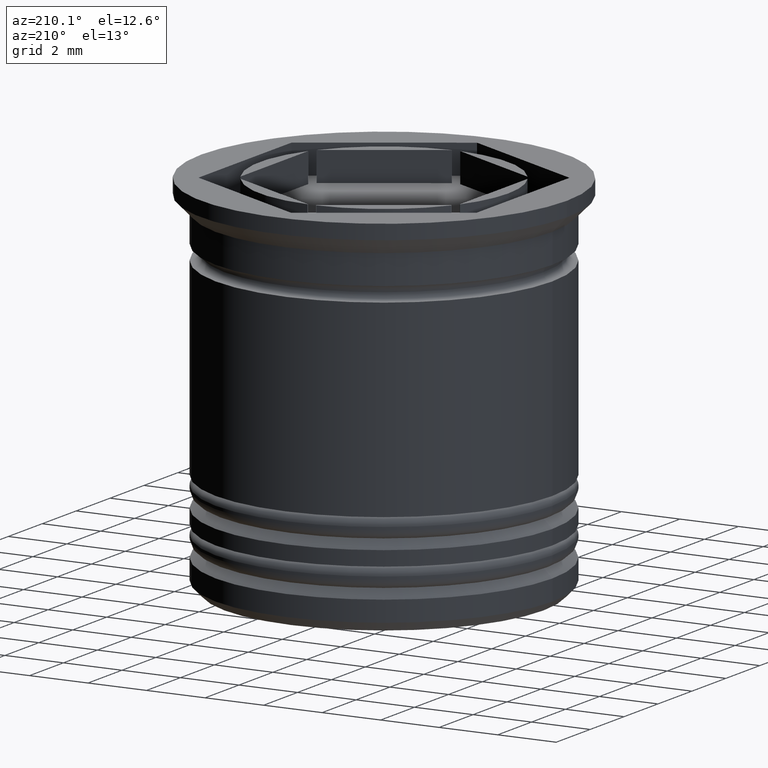
[diagram: clean part render]
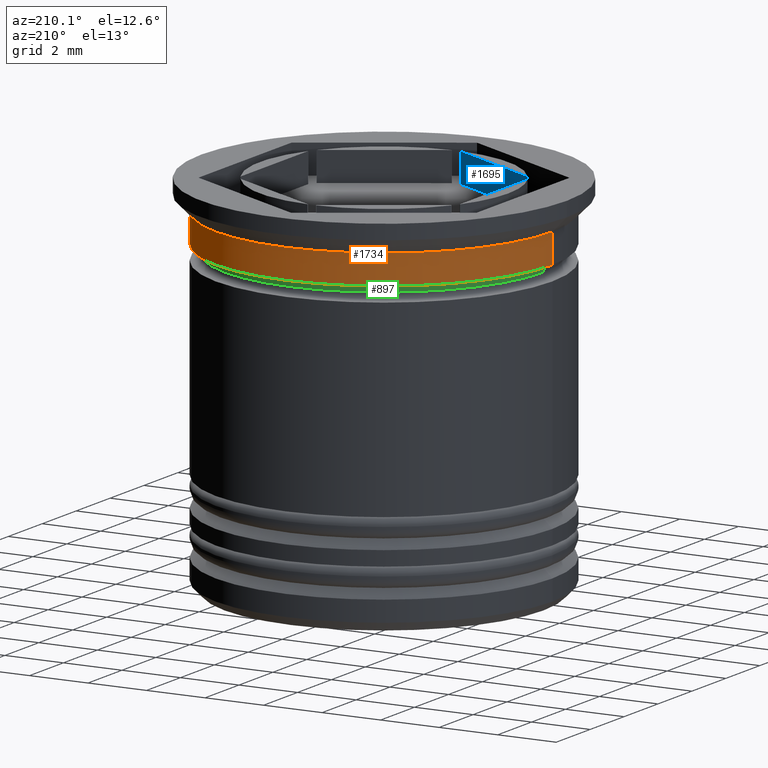
[diagram: same view with three faces highlighted in distinct colors, each labeled with its STEP entity id]
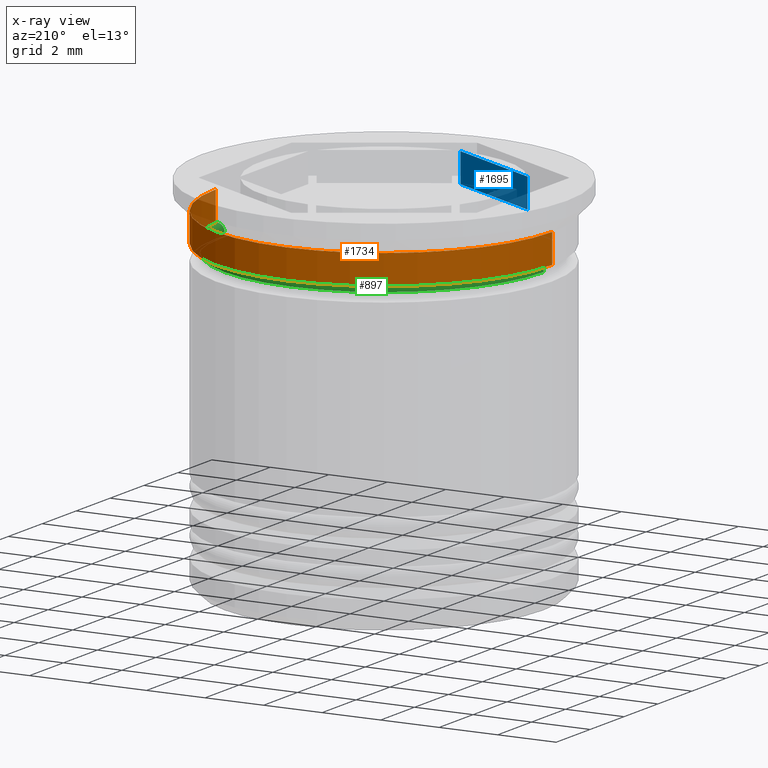
[diagram: x-ray of the same camera — body ghosted, the three highlighted faces saturated]
A machine part, auxiliary view with three faces highlighted in distinct colors.
The next image is the same camera in x-ray (body ghosted, the three faces saturated) — at least one of them is partly hidden behind the body in this view.
Their STEP definitions:

[orange] entity #1734 — the highlighted cylindrical surface (partial cylindrical patch) has radius 5.75 mm, axis along (-0, -0, 1).
#155 = ORIENTED_EDGE ( 'NONE', *, *, #1842, .F. ) ;
#162 = DIRECTION ( 'NONE',  ( 1.000000000000000000, 0.000000000000000000, 0.000000000000000000 ) ) ;
#204 = DIRECTION ( 'NONE',  ( 1.000000000000000000, 0.000000000000000000, 0.000000000000000000 ) ) ;
#206 = ORIENTED_EDGE ( 'NONE', *, *, #493, .T. ) ;
#259 = CARTESIAN_POINT ( 'NONE',  ( 0.000000000000000000, 0.000000000000000000, 0.000000000000000000 ) ) ;
#314 = DIRECTION ( 'NONE',  ( -0.000000000000000000, -0.000000000000000000, 1.000000000000000000 ) ) ;
#320 = VERTEX_POINT ( 'NONE', #1635 ) ;
#382 = ORIENTED_EDGE ( 'NONE', *, *, #1941, .F. ) ;
#453 = DIRECTION ( 'NONE',  ( 1.000000000000000000, 0.000000000000000000, 0.000000000000000000 ) ) ;
#493 = EDGE_CURVE ( 'NONE', #1436, #320, #573, .T. ) ;
#559 = CIRCLE ( 'NONE', #1985, 5.749999999999999112 ) ;
#573 = LINE ( 'NONE', #1451, #786 ) ;
#772 = CARTESIAN_POINT ( 'NONE',  ( 5.749999999999998224, 0.000000000000000000, 0.000000000000000000 ) ) ;
#786 = VECTOR ( 'NONE', #1475, 1000.000000000000000 ) ;
#796 = CARTESIAN_POINT ( 'NONE',  ( -5.749999999999999112, 7.041719095097280880E-16, -2.000000000000000444 ) ) ;
#812 = DIRECTION ( 'NONE',  ( -0.000000000000000000, -0.000000000000000000, 1.000000000000000000 ) ) ;
#830 = ORIENTED_EDGE ( 'NONE', *, *, #1855, .T. ) ;
#846 = CIRCLE ( 'NONE', #1570, 5.749999999999998224 ) ;
#869 = VERTEX_POINT ( 'NONE', #1622 ) ;
#903 = CARTESIAN_POINT ( 'NONE',  ( 0.000000000000000000, 0.000000000000000000, -0.9999999999999995559 ) ) ;
#936 = CARTESIAN_POINT ( 'NONE',  ( 5.749999999999998224, 0.000000000000000000, -0.9999999999999995559 ) ) ;
#1005 = VERTEX_POINT ( 'NONE', #936 ) ;
#1107 = VECTOR ( 'NONE', #812, 1000.000000000000000 ) ;
#1192 = DIRECTION ( 'NONE',  ( -0.000000000000000000, -0.000000000000000000, 1.000000000000000000 ) ) ;
#1206 = AXIS2_PLACEMENT_3D ( 'NONE', #259, #1192, #162 ) ;
#1383 = CYLINDRICAL_SURFACE ( 'NONE', #1206, 5.749999999999998224 ) ;
#1401 = CARTESIAN_POINT ( 'NONE',  ( 0.000000000000000000, 0.000000000000000000, -2.000000000000000444 ) ) ;
#1436 = VERTEX_POINT ( 'NONE', #796 ) ;
#1451 = CARTESIAN_POINT ( 'NONE',  ( -5.749999999999998224, 7.041719095097278907E-16, 0.000000000000000000 ) ) ;
#1475 = DIRECTION ( 'NONE',  ( -0.000000000000000000, -0.000000000000000000, 1.000000000000000000 ) ) ;
#1530 = FACE_OUTER_BOUND ( 'NONE', #1633, .T. ) ;
#1570 = AXIS2_PLACEMENT_3D ( 'NONE', #903, #1843, #453 ) ;
#1622 = CARTESIAN_POINT ( 'NONE',  ( 5.749999999999999112, 0.000000000000000000, -2.000000000000000444 ) ) ;
#1633 = EDGE_LOOP ( 'NONE', ( #830, #206, #155, #382 ) ) ;
#1635 = CARTESIAN_POINT ( 'NONE',  ( -5.749999999999998224, 7.041719095097278907E-16, -0.9999999999999995559 ) ) ;
#1731 = LINE ( 'NONE', #772, #1107 ) ;
#1734 = ADVANCED_FACE ( 'NONE', ( #1530 ), #1383, .T. ) ;
#1842 = EDGE_CURVE ( 'NONE', #1005, #320, #846, .T. ) ;
#1843 = DIRECTION ( 'NONE',  ( -0.000000000000000000, -0.000000000000000000, 1.000000000000000000 ) ) ;
#1855 = EDGE_CURVE ( 'NONE', #869, #1436, #559, .T. ) ;
#1941 = EDGE_CURVE ( 'NONE', #869, #1005, #1731, .T. ) ;
#1985 = AXIS2_PLACEMENT_3D ( 'NONE', #1401, #314, #204 ) ;

[blue] entity #1695 — the highlighted planar face has unit normal (-0.5, -0.866, 0).
#3 = CARTESIAN_POINT ( 'NONE',  ( -3.607050807568877637, -2.247595264191644571, 0.000000000000000000 ) ) ;
#133 = DIRECTION ( 'NONE',  ( 0.8660254037844385966, -0.5000000000000001110, 0.000000000000000000 ) ) ;
#170 = DIRECTION ( 'NONE',  ( -0.000000000000000000, -0.000000000000000000, -1.000000000000000000 ) ) ;
#223 = EDGE_LOOP ( 'NONE', ( #1549, #517, #1416, #810 ) ) ;
#349 = EDGE_CURVE ( 'NONE', #1215, #953, #1686, .T. ) ;
#375 = AXIS2_PLACEMENT_3D ( 'NONE', #1624, #994, #863 ) ;
#425 = DIRECTION ( 'NONE',  ( 0.000000000000000000, 0.000000000000000000, 1.000000000000000000 ) ) ;
#517 = ORIENTED_EDGE ( 'NONE', *, *, #1217, .F. ) ;
#563 = VECTOR ( 'NONE', #425, 1000.000000000000000 ) ;
#684 = CARTESIAN_POINT ( 'NONE',  ( -0.1429491924311234174, -4.247595264191645015, 0.000000000000000000 ) ) ;
#717 = LINE ( 'NONE', #1356, #1602 ) ;
#802 = VERTEX_POINT ( 'NONE', #954 ) ;
#810 = ORIENTED_EDGE ( 'NONE', *, *, #1934, .F. ) ;
#863 = DIRECTION ( 'NONE',  ( 0.8660254037844385966, -0.5000000000000001110, 0.000000000000000000 ) ) ;
#873 = DIRECTION ( 'NONE',  ( -0.8660254037844385966, 0.5000000000000001110, 0.000000000000000000 ) ) ;
#915 = VECTOR ( 'NONE', #170, 1000.000000000000000 ) ;
#926 = CARTESIAN_POINT ( 'NONE',  ( -0.1429491924311236117, -4.247595264191645015, -1.000000000000000888 ) ) ;
#953 = VERTEX_POINT ( 'NONE', #684 ) ;
#954 = CARTESIAN_POINT ( 'NONE',  ( -3.607050807568877637, -2.247595264191645015, -1.000000000000000888 ) ) ;
#994 = DIRECTION ( 'NONE',  ( -0.5000000000000001110, -0.8660254037844385966, 0.000000000000000000 ) ) ;
#999 = PLANE ( 'NONE',  #375 ) ;
#1024 = LINE ( 'NONE', #1816, #563 ) ;
#1158 = FACE_OUTER_BOUND ( 'NONE', #223, .T. ) ;
#1179 = EDGE_CURVE ( 'NONE', #1332, #802, #717, .T. ) ;
#1215 = VERTEX_POINT ( 'NONE', #3 ) ;
#1217 = EDGE_CURVE ( 'NONE', #1332, #953, #1024, .T. ) ;
#1284 = CARTESIAN_POINT ( 'NONE',  ( -3.607050807568877637, -2.247595264191645015, 12.02081528017130729 ) ) ;
#1332 = VERTEX_POINT ( 'NONE', #926 ) ;
#1349 = CARTESIAN_POINT ( 'NONE',  ( -1.875000000000000666, -3.247595264191645015, 0.000000000000000000 ) ) ;
#1356 = CARTESIAN_POINT ( 'NONE',  ( -3.750000000000000000, -2.165063509461096825, -1.000000000000000888 ) ) ;
#1416 = ORIENTED_EDGE ( 'NONE', *, *, #1179, .T. ) ;
#1465 = VECTOR ( 'NONE', #133, 1000.000000000000000 ) ;
#1549 = ORIENTED_EDGE ( 'NONE', *, *, #349, .T. ) ;
#1589 = LINE ( 'NONE', #1284, #915 ) ;
#1602 = VECTOR ( 'NONE', #873, 1000.000000000000000 ) ;
#1624 = CARTESIAN_POINT ( 'NONE',  ( -3.750000000000000000, -2.165063509461096825, -12.45643923738960090 ) ) ;
#1686 = LINE ( 'NONE', #1349, #1465 ) ;
#1695 = ADVANCED_FACE ( 'NONE', ( #1158 ), #999, .F. ) ;
#1816 = CARTESIAN_POINT ( 'NONE',  ( -0.1429491924311236117, -4.247595264191645015, 12.02081528017130729 ) ) ;
#1934 = EDGE_CURVE ( 'NONE', #1215, #802, #1589, .T. ) ;

[green] entity #897 — the highlighted toroidal blend (fillet) surface has major radius 5.7 mm and minor (blend) radius 0.25 mm.
#82 = CARTESIAN_POINT ( 'NONE',  ( -5.449999999999999289, 6.674325055353074252E-16, -2.250000000000000444 ) ) ;
#125 = ORIENTED_EDGE ( 'NONE', *, *, #1095, .F. ) ;
#308 = EDGE_CURVE ( 'NONE', #1727, #1759, #1500, .T. ) ;
#318 = DIRECTION ( 'NONE',  ( -0.000000000000000000, -0.000000000000000000, 1.000000000000000000 ) ) ;
#330 = CARTESIAN_POINT ( 'NONE',  ( -5.699999999999999289, 6.980486755139912122E-16, -2.250000000000000444 ) ) ;
#337 = CARTESIAN_POINT ( 'NONE',  ( -5.699999999999999289, 6.980486755139912122E-16, -2.000000000000000000 ) ) ;
#407 = CIRCLE ( 'NONE', #1571, 0.2500000000000002220 ) ;
#432 = CARTESIAN_POINT ( 'NONE',  ( 5.699999999999999289, 0.000000000000000000, -2.000000000000000000 ) ) ;
#447 = VERTEX_POINT ( 'NONE', #337 ) ;
#500 = TOROIDAL_SURFACE ( 'NONE', #916, 5.699999999999999289, 0.2500000000000002220 ) ;
#635 = AXIS2_PLACEMENT_3D ( 'NONE', #1084, #318, #927 ) ;
#674 = EDGE_LOOP ( 'NONE', ( #1427, #1249, #1246, #125 ) ) ;
#704 = DIRECTION ( 'NONE',  ( 0.000000000000000000, 0.000000000000000000, -1.000000000000000000 ) ) ;
#809 = EDGE_CURVE ( 'NONE', #447, #979, #407, .T. ) ;
#883 = CARTESIAN_POINT ( 'NONE',  ( 5.449999999999999289, 0.000000000000000000, -2.250000000000000444 ) ) ;
#897 = ADVANCED_FACE ( 'NONE', ( #1318 ), #500, .F. ) ;
#916 = AXIS2_PLACEMENT_3D ( 'NONE', #1958, #1781, #1154 ) ;
#927 = DIRECTION ( 'NONE',  ( 1.000000000000000000, 0.000000000000000000, 0.000000000000000000 ) ) ;
#943 = CIRCLE ( 'NONE', #1081, 5.449999999999999289 ) ;
#961 = DIRECTION ( 'NONE',  ( 1.224646799147353207E-16, 1.000000000000000000, 0.000000000000000000 ) ) ;
#979 = VERTEX_POINT ( 'NONE', #82 ) ;
#1009 = CARTESIAN_POINT ( 'NONE',  ( 5.699999999999999289, 0.000000000000000000, -2.250000000000000444 ) ) ;
#1081 = AXIS2_PLACEMENT_3D ( 'NONE', #1292, #1164, #1452 ) ;
#1084 = CARTESIAN_POINT ( 'NONE',  ( 0.000000000000000000, 0.000000000000000000, -2.000000000000000000 ) ) ;
#1095 = EDGE_CURVE ( 'NONE', #1727, #447, #1896, .T. ) ;
#1154 = DIRECTION ( 'NONE',  ( 1.000000000000000000, 0.000000000000000000, 0.000000000000000000 ) ) ;
#1164 = DIRECTION ( 'NONE',  ( -0.000000000000000000, -0.000000000000000000, 1.000000000000000000 ) ) ;
#1246 = ORIENTED_EDGE ( 'NONE', *, *, #809, .F. ) ;
#1249 = ORIENTED_EDGE ( 'NONE', *, *, #1609, .T. ) ;
#1292 = CARTESIAN_POINT ( 'NONE',  ( 0.000000000000000000, 0.000000000000000000, -2.250000000000000444 ) ) ;
#1318 = FACE_OUTER_BOUND ( 'NONE', #674, .T. ) ;
#1327 = DIRECTION ( 'NONE',  ( 0.000000000000000000, -1.000000000000000000, 0.000000000000000000 ) ) ;
#1427 = ORIENTED_EDGE ( 'NONE', *, *, #308, .T. ) ;
#1442 = DIRECTION ( 'NONE',  ( -1.000000000000000000, 1.224646799147353454E-16, 0.000000000000000000 ) ) ;
#1452 = DIRECTION ( 'NONE',  ( 1.000000000000000000, 0.000000000000000000, 0.000000000000000000 ) ) ;
#1500 = CIRCLE ( 'NONE', #1826, 0.2500000000000002220 ) ;
#1571 = AXIS2_PLACEMENT_3D ( 'NONE', #330, #961, #1442 ) ;
#1609 = EDGE_CURVE ( 'NONE', #1759, #979, #943, .T. ) ;
#1727 = VERTEX_POINT ( 'NONE', #432 ) ;
#1759 = VERTEX_POINT ( 'NONE', #883 ) ;
#1781 = DIRECTION ( 'NONE',  ( -0.000000000000000000, -0.000000000000000000, 1.000000000000000000 ) ) ;
#1826 = AXIS2_PLACEMENT_3D ( 'NONE', #1009, #1327, #704 ) ;
#1896 = CIRCLE ( 'NONE', #635, 5.699999999999999289 ) ;
#1958 = CARTESIAN_POINT ( 'NONE',  ( 0.000000000000000000, 0.000000000000000000, -2.250000000000000444 ) ) ;